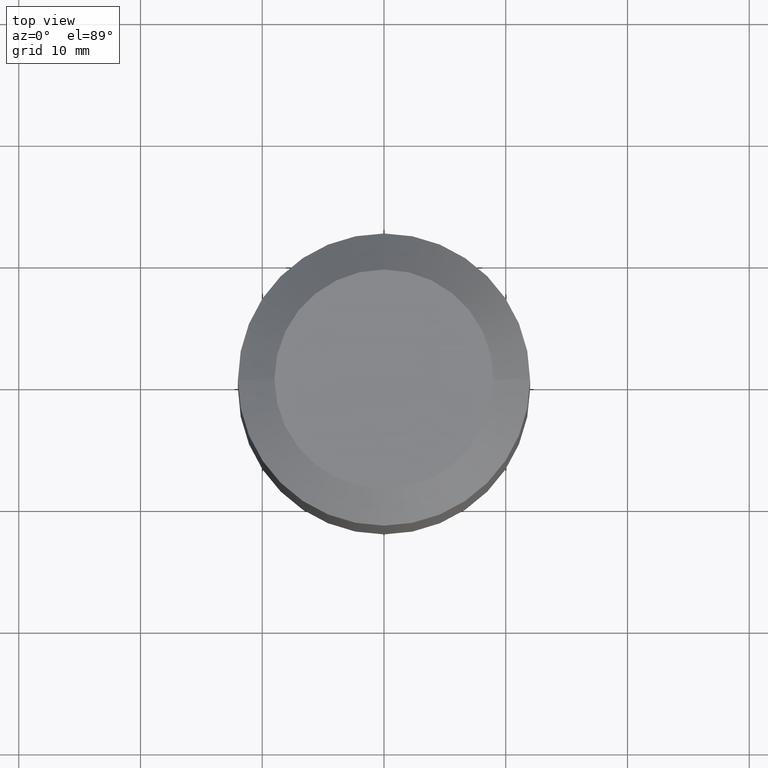
[diagram: clean part render]
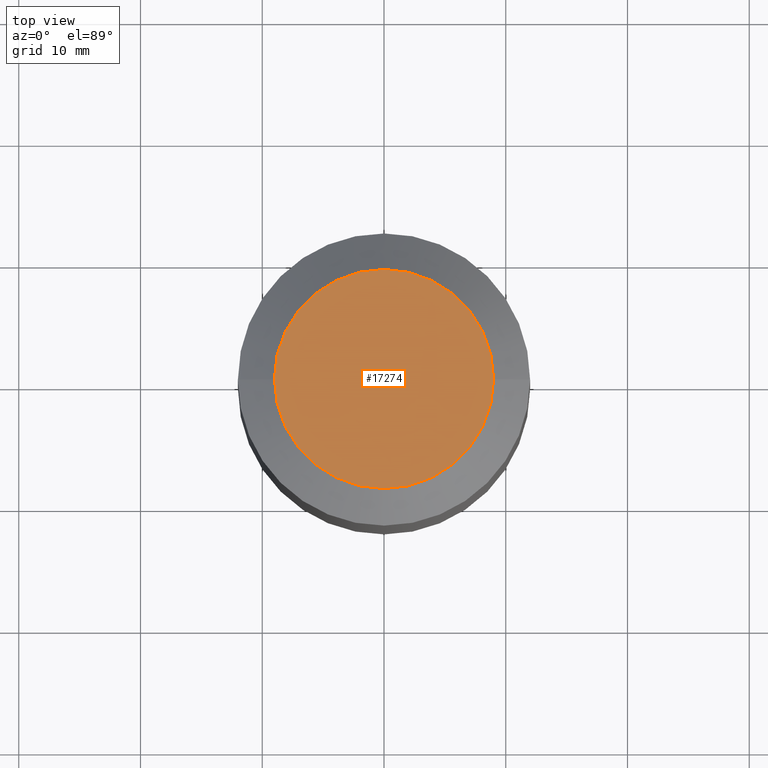
[diagram: same view with one face highlighted and labeled with its STEP entity id]
A machine part, top view. The second image highlights one B-rep face of the part: STEP entity #17274.
In plain terms, the highlighted planar face has unit normal (0, 0, 1).
Its self-contained STEP definition (entity closure, byte-faithful):
#1120 = EDGE_CURVE ( 'NONE', #12866, #1350, #23223, .T. ) ;
#1350 = VERTEX_POINT ( 'NONE', #1455 ) ;
#1383 = PLANE ( 'NONE',  #4801 ) ;
#1455 = CARTESIAN_POINT ( 'NONE',  ( 9.000000000000000000, 1.285879139104720633E-15, 49.54999999999999716 ) ) ;
#3665 = DIRECTION ( 'NONE',  ( 1.000000000000000000, 0.000000000000000000, 0.000000000000000000 ) ) ;
#4801 = AXIS2_PLACEMENT_3D ( 'NONE', #9309, #17363, #11648 ) ;
#7382 = ORIENTED_EDGE ( 'NONE', *, *, #1120, .T. ) ;
#7688 = AXIS2_PLACEMENT_3D ( 'NONE', #23966, #22004, #3665 ) ;
#9309 = CARTESIAN_POINT ( 'NONE',  ( 0.000000000000000000, 0.000000000000000000, 49.54999999999999716 ) ) ;
#11261 = FACE_OUTER_BOUND ( 'NONE', #17516, .T. ) ;
#11648 = DIRECTION ( 'NONE',  ( 1.000000000000000000, 0.000000000000000000, 0.000000000000000000 ) ) ;
#12866 = VERTEX_POINT ( 'NONE', #19973 ) ;
#17050 = DIRECTION ( 'NONE',  ( 1.000000000000000000, 0.000000000000000000, 0.000000000000000000 ) ) ;
#17274 = ADVANCED_FACE ( 'NONE', ( #11261 ), #1383, .T. ) ;
#17363 = DIRECTION ( 'NONE',  ( 0.000000000000000000, 0.000000000000000000, 1.000000000000000000 ) ) ;
#17516 = EDGE_LOOP ( 'NONE', ( #7382, #23689 ) ) ;
#18228 = CARTESIAN_POINT ( 'NONE',  ( 0.000000000000000000, 0.000000000000000000, 49.54999999999999716 ) ) ;
#18879 = CIRCLE ( 'NONE', #7688, 9.000000000000000000 ) ;
#19973 = CARTESIAN_POINT ( 'NONE',  ( -9.000000000000000000, 0.000000000000000000, 49.54999999999999716 ) ) ;
#20710 = AXIS2_PLACEMENT_3D ( 'NONE', #18228, #24873, #17050 ) ;
#22004 = DIRECTION ( 'NONE',  ( 0.000000000000000000, 0.000000000000000000, 1.000000000000000000 ) ) ;
#22214 = EDGE_CURVE ( 'NONE', #1350, #12866, #18879, .T. ) ;
#23223 = CIRCLE ( 'NONE', #20710, 9.000000000000000000 ) ;
#23689 = ORIENTED_EDGE ( 'NONE', *, *, #22214, .T. ) ;
#23966 = CARTESIAN_POINT ( 'NONE',  ( 0.000000000000000000, 0.000000000000000000, 49.54999999999999716 ) ) ;
#24873 = DIRECTION ( 'NONE',  ( 0.000000000000000000, 0.000000000000000000, 1.000000000000000000 ) ) ;